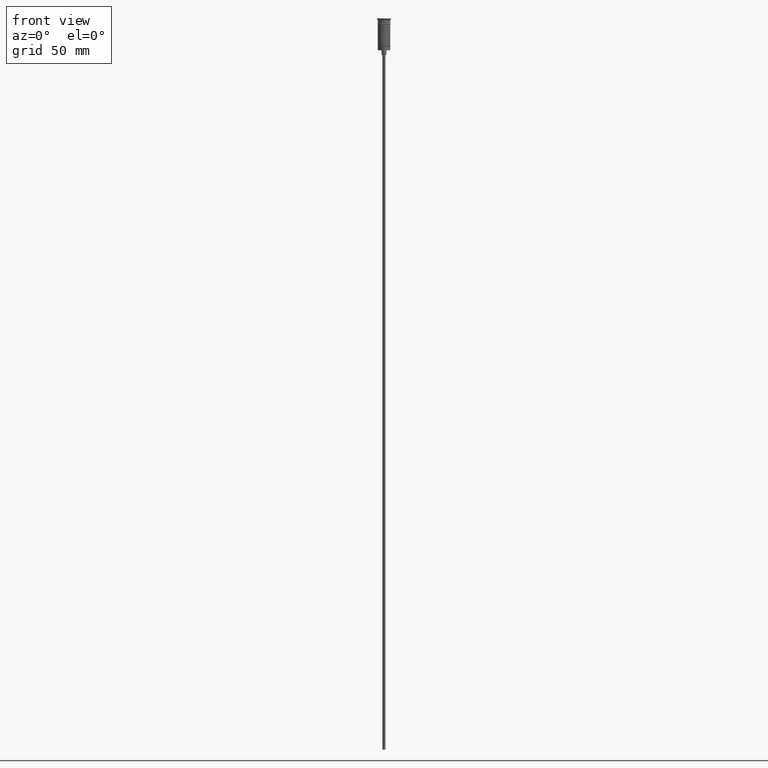
[diagram: clean part render]
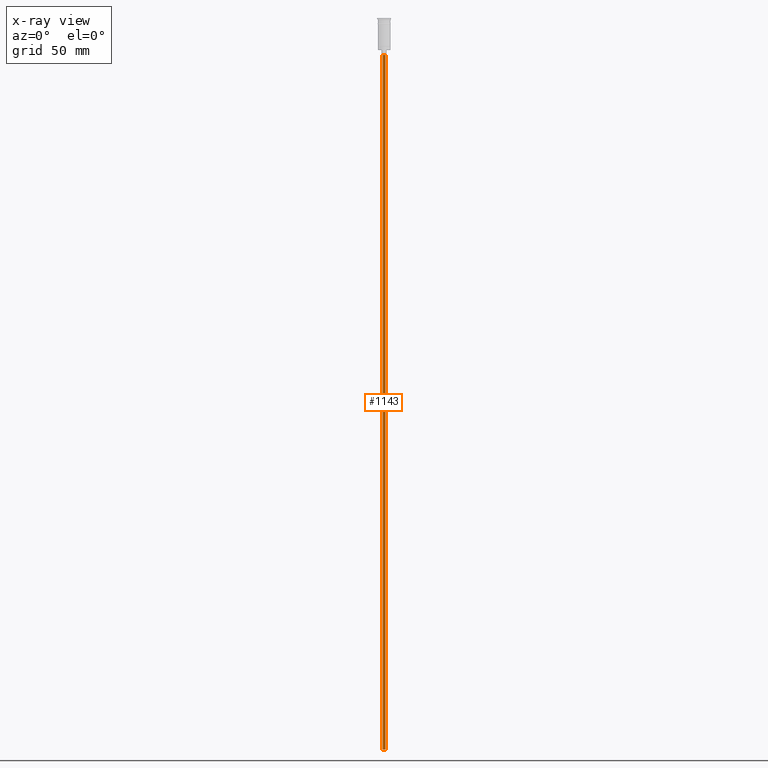
[diagram: x-ray — body ghosted, one internal face saturated and labeled with its STEP entity id]
A machine part, front view, then the same camera in x-ray: the body is ghosted and one INTERNAL B-rep face — a face not visible from any outside direction — is saturated and labeled: STEP entity #1143.
In plain terms, the highlighted cylindrical surface (edge-blend (fillet) strip) has radius 1 mm, axis along (-0, -0, 1).
Its self-contained STEP definition (entity closure, byte-faithful):
#65 = CARTESIAN_POINT ( 'NONE',  ( 0.000000000000000000, 0.000000000000000000, -470.5000000000000568 ) ) ;
#90 = ORIENTED_EDGE ( 'NONE', *, *, #1198, .F. ) ;
#144 = CARTESIAN_POINT ( 'NONE',  ( 0.9999999999999997780, 0.000000000000000000, -23.49999999999999645 ) ) ;
#175 = DIRECTION ( 'NONE',  ( 0.000000000000000000, 0.000000000000000000, -1.000000000000000000 ) ) ;
#224 = AXIS2_PLACEMENT_3D ( 'NONE', #623, #639, #1138 ) ;
#309 = DIRECTION ( 'NONE',  ( -0.000000000000000000, -0.000000000000000000, 1.000000000000000000 ) ) ;
#317 = CARTESIAN_POINT ( 'NONE',  ( -0.9999999999999997780, 1.224646799147352961E-16, -470.5000000000000568 ) ) ;
#423 = CYLINDRICAL_SURFACE ( 'NONE', #1490, 0.9999999999999997780 ) ;
#440 = VERTEX_POINT ( 'NONE', #144 ) ;
#463 = CARTESIAN_POINT ( 'NONE',  ( 0.9999999999999997780, 0.000000000000000000, -470.5000000000000568 ) ) ;
#475 = AXIS2_PLACEMENT_3D ( 'NONE', #635, #175, #1399 ) ;
#528 = CIRCLE ( 'NONE', #224, 0.9999999999999997780 ) ;
#549 = VERTEX_POINT ( 'NONE', #1523 ) ;
#571 = FACE_OUTER_BOUND ( 'NONE', #1344, .T. ) ;
#623 = CARTESIAN_POINT ( 'NONE',  ( 0.000000000000000000, 0.000000000000000000, -23.49999999999999645 ) ) ;
#635 = CARTESIAN_POINT ( 'NONE',  ( 0.000000000000000000, 0.000000000000000000, -470.5000000000000568 ) ) ;
#639 = DIRECTION ( 'NONE',  ( 0.000000000000000000, 0.000000000000000000, -1.000000000000000000 ) ) ;
#697 = CARTESIAN_POINT ( 'NONE',  ( 0.9999999999999997780, 0.000000000000000000, -470.5000000000000568 ) ) ;
#830 = VERTEX_POINT ( 'NONE', #463 ) ;
#847 = LINE ( 'NONE', #697, #1237 ) ;
#906 = EDGE_CURVE ( 'NONE', #1366, #830, #1206, .T. ) ;
#971 = DIRECTION ( 'NONE',  ( -0.000000000000000000, -0.000000000000000000, 1.000000000000000000 ) ) ;
#972 = ORIENTED_EDGE ( 'NONE', *, *, #1118, .T. ) ;
#1000 = ORIENTED_EDGE ( 'NONE', *, *, #1429, .T. ) ;
#1025 = CARTESIAN_POINT ( 'NONE',  ( -0.9999999999999997780, 1.224646799147352961E-16, -470.5000000000000568 ) ) ;
#1047 = VECTOR ( 'NONE', #309, 1000.000000000000000 ) ;
#1051 = DIRECTION ( 'NONE',  ( -0.000000000000000000, -0.000000000000000000, 1.000000000000000000 ) ) ;
#1076 = DIRECTION ( 'NONE',  ( 1.000000000000000000, 0.000000000000000000, 0.000000000000000000 ) ) ;
#1111 = ORIENTED_EDGE ( 'NONE', *, *, #906, .F. ) ;
#1118 = EDGE_CURVE ( 'NONE', #1366, #549, #1301, .T. ) ;
#1138 = DIRECTION ( 'NONE',  ( -1.000000000000000000, 0.000000000000000000, 0.000000000000000000 ) ) ;
#1143 = ADVANCED_FACE ( 'NONE', ( #571 ), #423, .T. ) ;
#1198 = EDGE_CURVE ( 'NONE', #830, #440, #847, .T. ) ;
#1206 = CIRCLE ( 'NONE', #475, 0.9999999999999997780 ) ;
#1237 = VECTOR ( 'NONE', #971, 1000.000000000000000 ) ;
#1301 = LINE ( 'NONE', #317, #1047 ) ;
#1344 = EDGE_LOOP ( 'NONE', ( #1111, #972, #1000, #90 ) ) ;
#1366 = VERTEX_POINT ( 'NONE', #1025 ) ;
#1399 = DIRECTION ( 'NONE',  ( -1.000000000000000000, 0.000000000000000000, 0.000000000000000000 ) ) ;
#1429 = EDGE_CURVE ( 'NONE', #549, #440, #528, .T. ) ;
#1490 = AXIS2_PLACEMENT_3D ( 'NONE', #65, #1051, #1076 ) ;
#1523 = CARTESIAN_POINT ( 'NONE',  ( -0.9999999999999997780, 1.224646799147352961E-16, -23.49999999999999645 ) ) ;